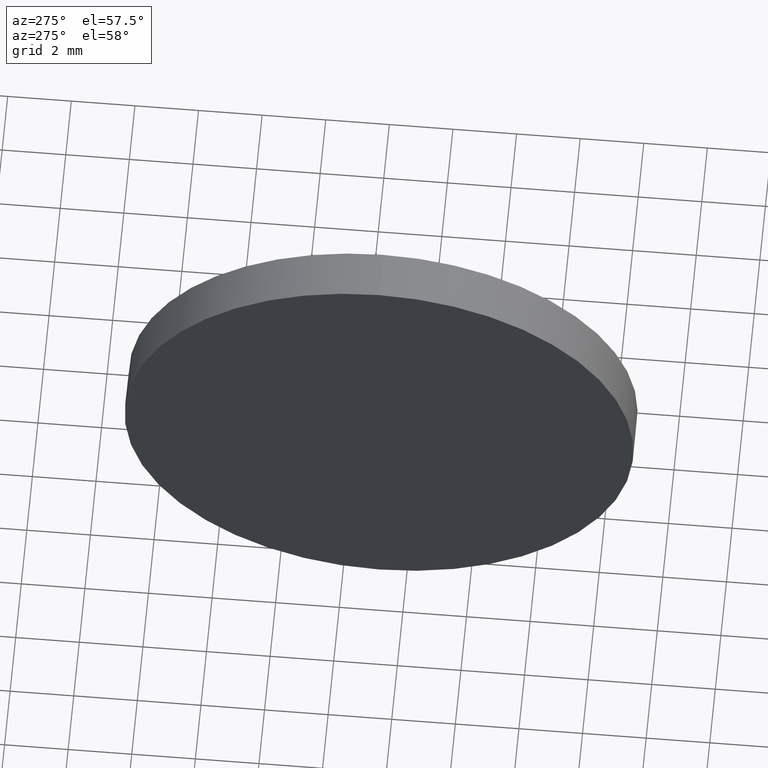
[diagram: clean part render]
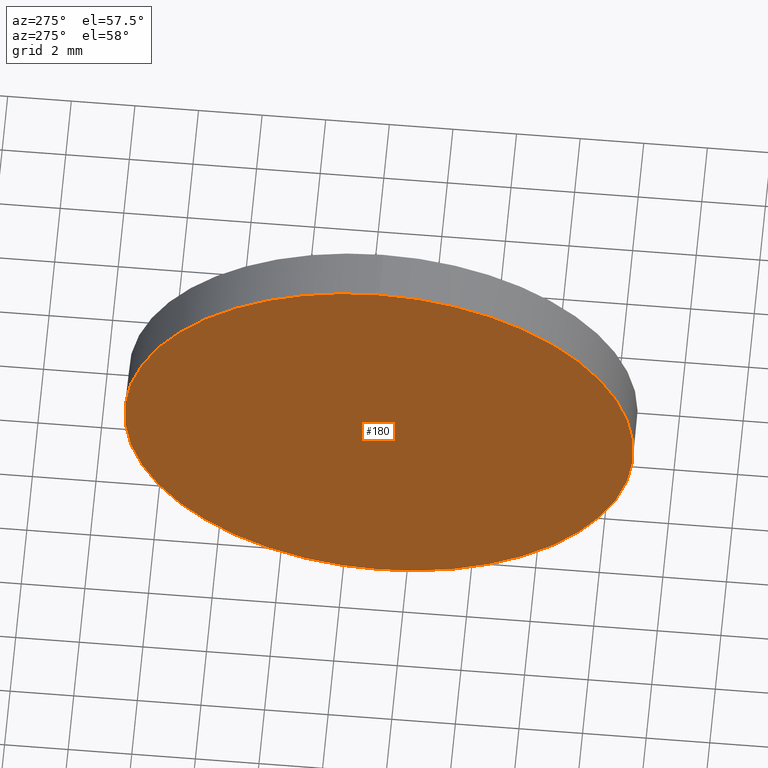
[diagram: same view with one face highlighted and labeled with its STEP entity id]
A machine part, auxiliary view. The second image highlights one B-rep face of the part: STEP entity #180.
In plain terms, the highlighted planar face has unit normal (1, 0, 0).
Its self-contained STEP definition (entity closure, byte-faithful):
#11 = EDGE_LOOP ( 'NONE', ( #25, #138 ) ) ;
#12 = CARTESIAN_POINT ( 'NONE',  ( 393.2896529179952800, 34.86392856957570500, 8.000000000000000000 ) ) ;
#15 = CARTESIAN_POINT ( 'NONE',  ( 393.2896529179952800, 34.86392856957570500, 0.0000000000000000000 ) ) ;
#20 = EDGE_CURVE ( 'NONE', #61, #46, #21, .T. ) ;
#21 = CIRCLE ( 'NONE', #123, 8.000000000000000000 ) ;
#23 = PLANE ( 'NONE',  #89 ) ;
#25 = ORIENTED_EDGE ( 'NONE', *, *, #20, .T. ) ;
#46 = VERTEX_POINT ( 'NONE', #70 ) ;
#52 = EDGE_CURVE ( 'NONE', #46, #61, #55, .T. ) ;
#55 = CIRCLE ( 'NONE', #175, 8.000000000000000000 ) ;
#61 = VERTEX_POINT ( 'NONE', #12 ) ;
#70 = CARTESIAN_POINT ( 'NONE',  ( 393.2896529179952800, 34.86392856957570500, -8.000000000000000000 ) ) ;
#79 = CARTESIAN_POINT ( 'NONE',  ( 393.2896529179952800, 34.86392856957570500, 0.0000000000000000000 ) ) ;
#84 = DIRECTION ( 'NONE',  ( -1.000000000000000000, -0.0000000000000000000, -0.0000000000000000000 ) ) ;
#89 = AXIS2_PLACEMENT_3D ( 'NONE', #79, #137, #109 ) ;
#109 = DIRECTION ( 'NONE',  ( 0.0000000000000000000, 0.0000000000000000000, -1.000000000000000000 ) ) ;
#123 = AXIS2_PLACEMENT_3D ( 'NONE', #125, #84, #182 ) ;
#125 = CARTESIAN_POINT ( 'NONE',  ( 393.2896529179952800, 34.86392856957570500, 0.0000000000000000000 ) ) ;
#137 = DIRECTION ( 'NONE',  ( 1.000000000000000000, 0.0000000000000000000, 0.0000000000000000000 ) ) ;
#138 = ORIENTED_EDGE ( 'NONE', *, *, #52, .T. ) ;
#139 = DIRECTION ( 'NONE',  ( 0.0000000000000000000, 0.0000000000000000000, 1.000000000000000000 ) ) ;
#152 = FACE_OUTER_BOUND ( 'NONE', #11, .T. ) ;
#167 = DIRECTION ( 'NONE',  ( -1.000000000000000000, -0.0000000000000000000, -0.0000000000000000000 ) ) ;
#175 = AXIS2_PLACEMENT_3D ( 'NONE', #15, #167, #139 ) ;
#180 = ADVANCED_FACE ( 'NONE', ( #152 ), #23, .F. ) ;
#182 = DIRECTION ( 'NONE',  ( 0.0000000000000000000, 0.0000000000000000000, 1.000000000000000000 ) ) ;